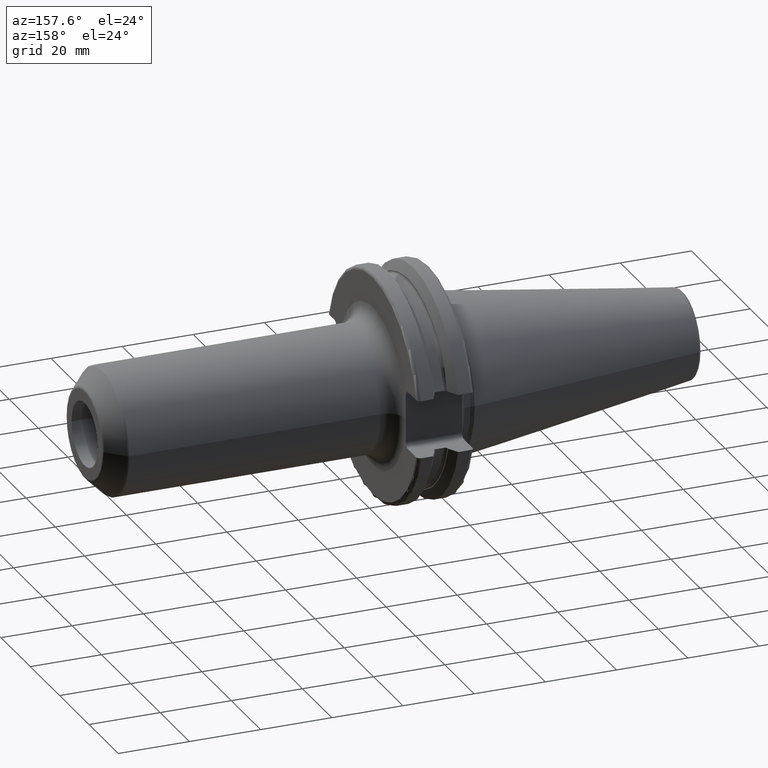
[diagram: clean part render]
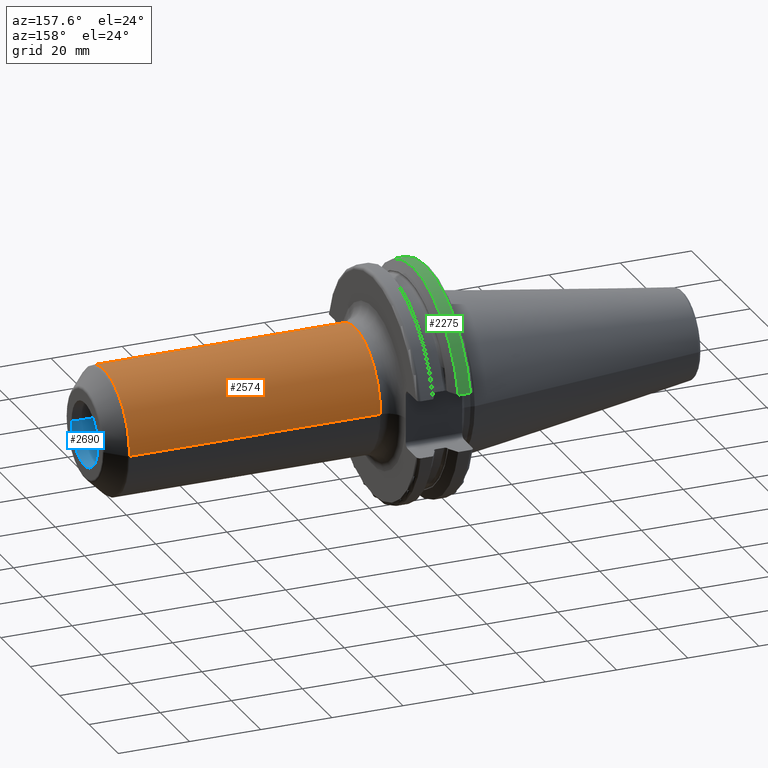
[diagram: same view with three faces highlighted in distinct colors, each labeled with its STEP entity id]
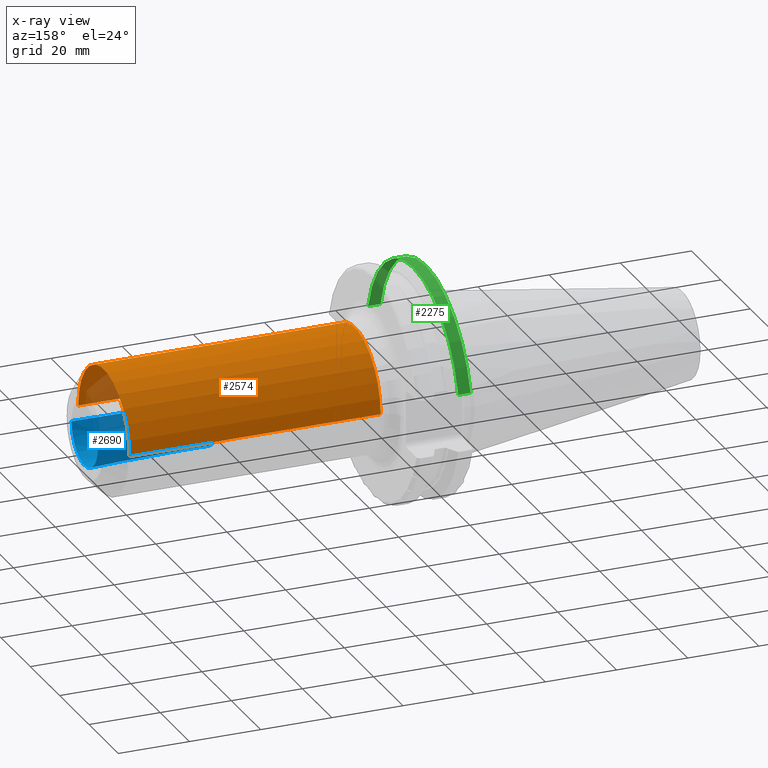
[diagram: x-ray of the same camera — body ghosted, the three highlighted faces saturated]
A machine part, auxiliary view with three faces highlighted in distinct colors.
The next image is the same camera in x-ray (body ghosted, the three faces saturated) — at least one of them is partly hidden behind the body in this view.
Their STEP definitions:

[orange] entity #2574 — the highlighted cylindrical surface (partial cylindrical patch) has radius 17.5 mm, axis along (1, 0, 0).
#948=CARTESIAN_POINT('',(9.458578643763E1,0.E0,0.E0));
#949=DIRECTION('',(-1.E0,0.E0,0.E0));
#950=DIRECTION('',(0.E0,-1.E0,0.E0));
#951=AXIS2_PLACEMENT_3D('',#948,#949,#950);
#953=CARTESIAN_POINT('',(2.405E1,0.E0,0.E0));
#954=DIRECTION('',(1.E0,0.E0,0.E0));
#955=DIRECTION('',(0.E0,1.E0,0.E0));
#956=AXIS2_PLACEMENT_3D('',#953,#954,#955);
#973=DIRECTION('',(-1.E0,0.E0,4.628837441044E-13));
#974=VECTOR('',#973,7.053578643763E1);
#975=CARTESIAN_POINT('',(9.458578643763E1,1.75E1,-3.017080037937E-11));
#976=LINE('',#975,#974);
#982=DIRECTION('',(-1.E0,0.E0,-4.629070515799E-13));
#983=VECTOR('',#982,7.053578643763E1);
#984=CARTESIAN_POINT('',(9.458578643763E1,-1.75E1,3.016999665343E-11));
#985=LINE('',#984,#983);
#1552=CARTESIAN_POINT('',(2.405E1,-1.75E1,0.E0));
#1553=CARTESIAN_POINT('',(2.405E1,1.75E1,0.E0));
#1554=VERTEX_POINT('',#1552);
#1555=VERTEX_POINT('',#1553);
#1564=CARTESIAN_POINT('',(9.458578643763E1,1.75E1,0.E0));
#1565=CARTESIAN_POINT('',(9.458578643763E1,-1.75E1,0.E0));
#1566=VERTEX_POINT('',#1564);
#1567=VERTEX_POINT('',#1565);
#2560=CARTESIAN_POINT('',(1.50025E1,0.E0,0.E0));
#2561=DIRECTION('',(1.E0,0.E0,0.E0));
#2562=DIRECTION('',(0.E0,-1.E0,0.E0));
#2563=AXIS2_PLACEMENT_3D('',#2560,#2561,#2562);
#2564=CYLINDRICAL_SURFACE('',#2563,1.75E1);
#2566=ORIENTED_EDGE('',*,*,#2565,.F.);
#2568=ORIENTED_EDGE('',*,*,#2567,.T.);
#2569=ORIENTED_EDGE('',*,*,#2554,.F.);
#2571=ORIENTED_EDGE('',*,*,#2570,.F.);
#2572=EDGE_LOOP('',(#2566,#2568,#2569,#2571));
#2573=FACE_OUTER_BOUND('',#2572,.F.);
#2574=ADVANCED_FACE('',(#2573),#2564,.T.);
#952=CIRCLE('',#951,1.75E1);
#957=CIRCLE('',#956,1.75E1);
#2554=EDGE_CURVE('',#1555,#1554,#957,.T.);
#2565=EDGE_CURVE('',#1567,#1566,#952,.T.);
#2567=EDGE_CURVE('',#1567,#1554,#985,.T.);
#2570=EDGE_CURVE('',#1566,#1555,#976,.T.);

[blue] entity #2690 — the highlighted conical surface has half-angle 0.985 deg.
#1010=CARTESIAN_POINT('',(1.E2,0.E0,0.E0));
#1011=DIRECTION('',(1.E0,0.E0,0.E0));
#1012=DIRECTION('',(0.E0,-1.E0,0.E0));
#1013=AXIS2_PLACEMENT_3D('',#1010,#1011,#1012);
#1025=DIRECTION('',(-9.998521465673E-1,1.719549373433E-2,0.E0));
#1026=VECTOR('',#1025,3.343899331323E1);
#1027=CARTESIAN_POINT('',(1.E2,-8.935E0,0.E0));
#1028=LINE('',#1027,#1026);
#1029=DIRECTION('',(-9.998521465673E-1,-1.719549373433E-2,0.E0));
#1030=VECTOR('',#1029,3.343899331323E1);
#1031=CARTESIAN_POINT('',(1.E2,8.935E0,0.E0));
#1032=LINE('',#1031,#1030);
#1037=CARTESIAN_POINT('',(6.656595075672E1,0.E0,0.E0));
#1038=DIRECTION('',(-1.E0,0.E0,0.E0));
#1039=DIRECTION('',(0.E0,1.E0,0.E0));
#1040=AXIS2_PLACEMENT_3D('',#1037,#1038,#1039);
#1536=CARTESIAN_POINT('',(6.656595075672E1,8.36E0,0.E0));
#1538=VERTEX_POINT('',#1536);
#1540=CARTESIAN_POINT('',(6.656595075672E1,-8.36E0,0.E0));
#1542=VERTEX_POINT('',#1540);
#1544=CARTESIAN_POINT('',(1.E2,8.935E0,0.E0));
#1545=CARTESIAN_POINT('',(1.E2,-8.935E0,0.E0));
#1546=VERTEX_POINT('',#1544);
#1547=VERTEX_POINT('',#1545);
#2678=CARTESIAN_POINT('',(8.328297537836E1,0.E0,0.E0));
#2679=DIRECTION('',(1.E0,0.E0,0.E0));
#2680=DIRECTION('',(0.E0,-1.E0,0.E0));
#2681=AXIS2_PLACEMENT_3D('',#2678,#2679,#2680);
#2682=CONICAL_SURFACE('',#2681,8.6475E0,9.85277777E-1);
#2683=ORIENTED_EDGE('',*,*,#2658,.F.);
#2684=ORIENTED_EDGE('',*,*,#2673,.T.);
#2686=ORIENTED_EDGE('',*,*,#2685,.F.);
#2687=ORIENTED_EDGE('',*,*,#2669,.F.);
#2688=EDGE_LOOP('',(#2683,#2684,#2686,#2687));
#2689=FACE_OUTER_BOUND('',#2688,.F.);
#2690=ADVANCED_FACE('',(#2689),#2682,.F.);
#1014=CIRCLE('',#1013,8.935E0);
#1041=CIRCLE('',#1040,8.36E0);
#2658=EDGE_CURVE('',#1547,#1546,#1014,.T.);
#2669=EDGE_CURVE('',#1546,#1538,#1032,.T.);
#2673=EDGE_CURVE('',#1547,#1542,#1028,.T.);
#2685=EDGE_CURVE('',#1538,#1542,#1041,.T.);

[green] entity #2275 — the highlighted cylindrical surface (partial cylindrical patch) has radius 31.7625 mm, axis along (1, 0, 0).
#584=DIRECTION('',(1.E0,0.E0,0.E0));
#585=VECTOR('',#584,3.445946479578E0);
#586=CARTESIAN_POINT('',(4.2E0,3.071231684927E1,8.1E0));
#587=LINE('',#586,#585);
#588=CARTESIAN_POINT('',(7.645946479578E0,0.E0,0.E0));
#589=DIRECTION('',(1.E0,0.E0,0.E0));
#590=DIRECTION('',(0.E0,9.669363825036E-1,2.550177095632E-1));
#591=AXIS2_PLACEMENT_3D('',#588,#589,#590);
#593=DIRECTION('',(1.E0,0.E0,0.E0));
#594=VECTOR('',#593,3.445946479578E0);
#595=CARTESIAN_POINT('',(4.2E0,-3.071231684927E1,8.1E0));
#596=LINE('',#595,#594);
#615=CARTESIAN_POINT('',(7.645946479578E0,3.071231684927E1,8.1E0));
#627=CARTESIAN_POINT('',(7.645946479578E0,-3.071231684927E1,8.1E0));
#922=CARTESIAN_POINT('',(4.2E0,0.E0,0.E0));
#923=DIRECTION('',(1.E0,0.E0,0.E0));
#924=DIRECTION('',(0.E0,9.669363825036E-1,2.550177095632E-1));
#925=AXIS2_PLACEMENT_3D('',#922,#923,#924);
#1428=VERTEX_POINT('',#615);
#1429=VERTEX_POINT('',#627);
#1440=CARTESIAN_POINT('',(4.2E0,3.071231684927E1,8.1E0));
#1441=VERTEX_POINT('',#1440);
#1444=CARTESIAN_POINT('',(4.2E0,-3.071231684927E1,8.1E0));
#1445=VERTEX_POINT('',#1444);
#2262=CARTESIAN_POINT('',(-7.2615E1,0.E0,0.E0));
#2263=DIRECTION('',(1.E0,0.E0,0.E0));
#2264=DIRECTION('',(0.E0,-1.E0,0.E0));
#2265=AXIS2_PLACEMENT_3D('',#2262,#2263,#2264);
#2266=CYLINDRICAL_SURFACE('',#2265,3.17625E1);
#2267=ORIENTED_EDGE('',*,*,#1912,.T.);
#2269=ORIENTED_EDGE('',*,*,#2268,.T.);
#2270=ORIENTED_EDGE('',*,*,#1944,.F.);
#2272=ORIENTED_EDGE('',*,*,#2271,.F.);
#2273=EDGE_LOOP('',(#2267,#2269,#2270,#2272));
#2274=FACE_OUTER_BOUND('',#2273,.F.);
#2275=ADVANCED_FACE('',(#2274),#2266,.T.);
#592=CIRCLE('',#591,3.17625E1);
#926=CIRCLE('',#925,3.17625E1);
#1912=EDGE_CURVE('',#1441,#1428,#587,.T.);
#1944=EDGE_CURVE('',#1445,#1429,#596,.T.);
#2268=EDGE_CURVE('',#1428,#1429,#592,.T.);
#2271=EDGE_CURVE('',#1441,#1445,#926,.T.);